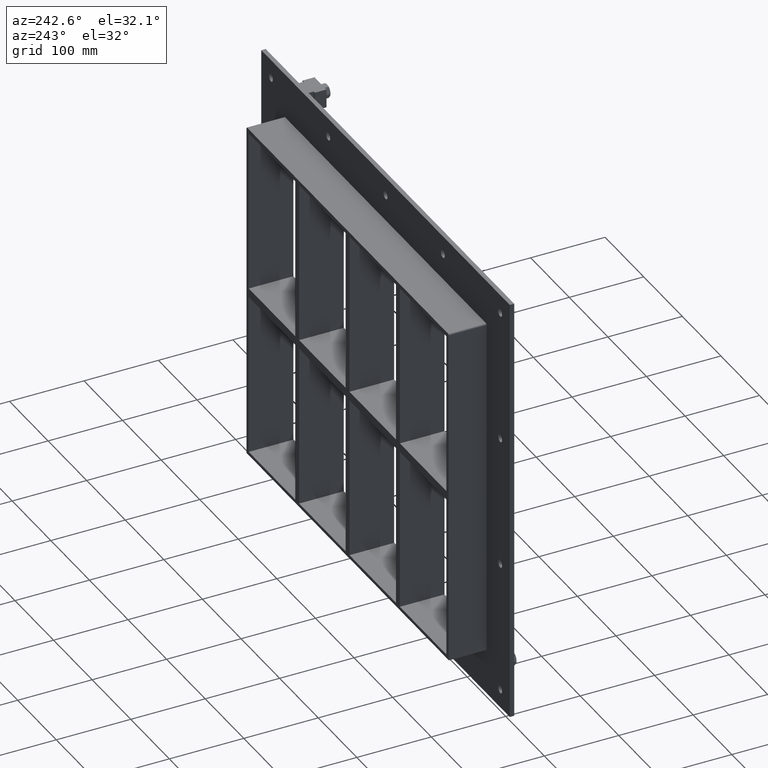
[diagram: clean part render]
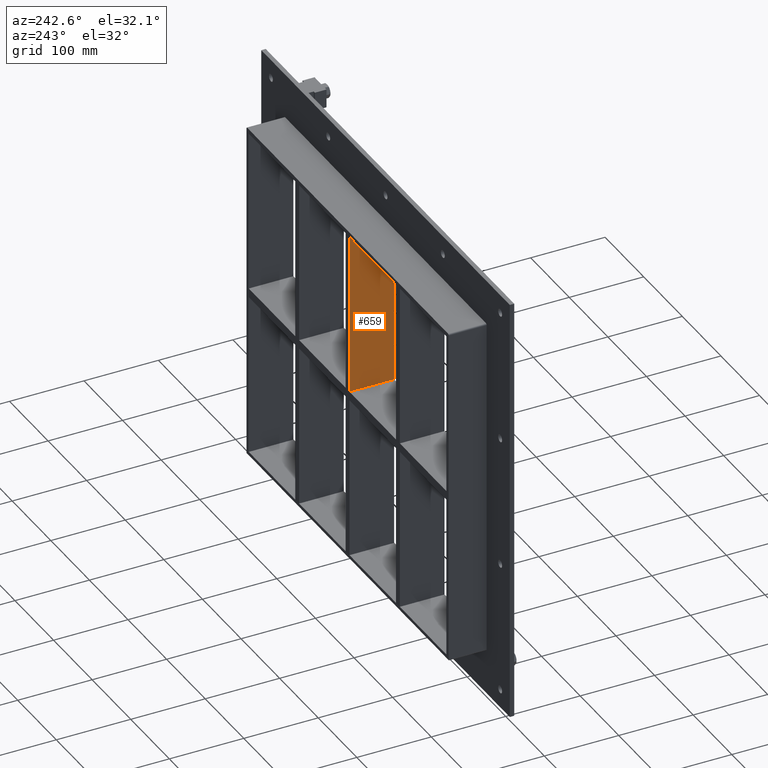
[diagram: same view with one face highlighted and labeled with its STEP entity id]
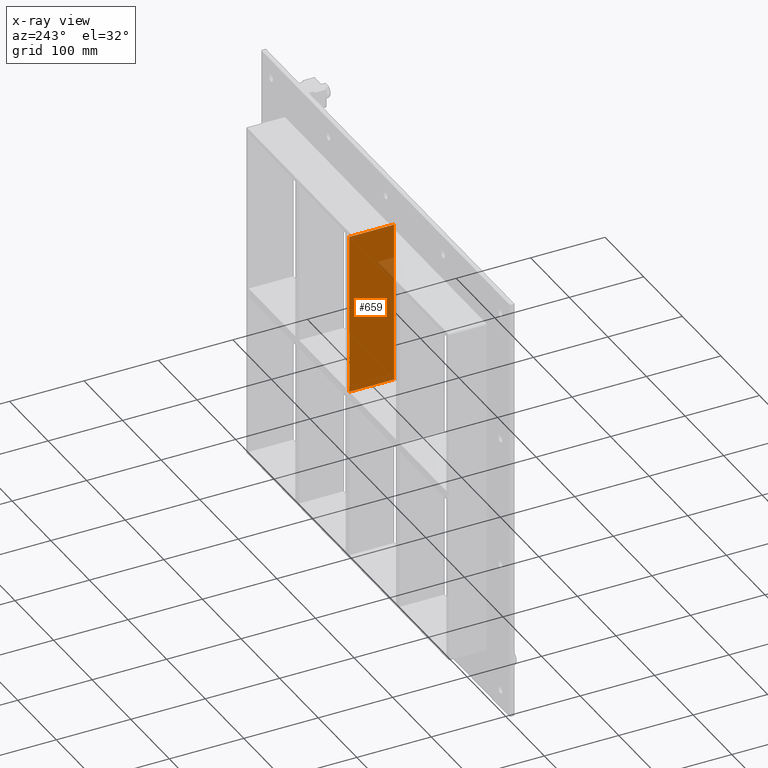
[diagram: x-ray of the same camera — body ghosted, the highlighted face saturated]
A machine part, auxiliary view. The second image highlights one B-rep face of the part: STEP entity #659.
The next image is the same camera in x-ray: the body ghosted, the highlighted face saturated — about 3% of this face is hidden behind the body in this view.
In plain terms, the highlighted planar face has unit normal (-1, 0, 0).
Its self-contained STEP definition (entity closure, byte-faithful):
#620=CARTESIAN_POINT('',(-5.000000000000284,-3.0,-224.00000000000009));
#621=DIRECTION('',(-1.0,0.0,0.0));
#622=DIRECTION('',(0.0,0.0,1.0));
#623=AXIS2_PLACEMENT_3D('',#620,#621,#622);
#624=PLANE('',#623);
#625=CARTESIAN_POINT('',(-5.000000000000321,-3.0,6.000000000000227));
#626=VERTEX_POINT('',#625);
#627=CARTESIAN_POINT('',(-5.000000000000321,57.0,6.000000000000227));
#628=VERTEX_POINT('',#627);
#629=CARTESIAN_POINT('',(-5.00000000000032,-3.0,6.000000000000227));
#630=DIRECTION('',(0.0,1.0,0.0));
#631=VECTOR('',#630,60.0);
#632=LINE('',#629,#631);
#633=EDGE_CURVE('',#626,#628,#632,.T.);
#634=ORIENTED_EDGE('',*,*,#633,.F.);
#635=CARTESIAN_POINT('',(-5.000000000000355,-3.0,224.00000000000003));
#636=VERTEX_POINT('',#635);
#637=CARTESIAN_POINT('',(-5.000000000000321,-3.0,6.000000000000227));
#638=DIRECTION('',(0.0,0.0,1.0));
#639=VECTOR('',#638,217.9999999999998);
#640=LINE('',#637,#639);
#641=EDGE_CURVE('',#626,#636,#640,.T.);
#642=ORIENTED_EDGE('',*,*,#641,.T.);
#643=CARTESIAN_POINT('',(-5.000000000000355,57.0,224.00000000000003));
#644=VERTEX_POINT('',#643);
#645=CARTESIAN_POINT('',(-5.000000000000355,57.000000000000007,224.00000000000006));
#646=DIRECTION('',(0.0,-1.0,0.0));
#647=VECTOR('',#646,60.000000000000007);
#648=LINE('',#645,#647);
#649=EDGE_CURVE('',#644,#636,#648,.T.);
#650=ORIENTED_EDGE('',*,*,#649,.F.);
#651=CARTESIAN_POINT('',(-5.000000000000321,57.0,6.000000000000227));
#652=DIRECTION('',(0.0,0.0,1.0));
#653=VECTOR('',#652,217.9999999999998);
#654=LINE('',#651,#653);
#655=EDGE_CURVE('',#628,#644,#654,.T.);
#656=ORIENTED_EDGE('',*,*,#655,.F.);
#657=EDGE_LOOP('',(#634,#642,#650,#656));
#658=FACE_OUTER_BOUND('',#657,.T.);
#659=ADVANCED_FACE('',(#658),#624,.T.);